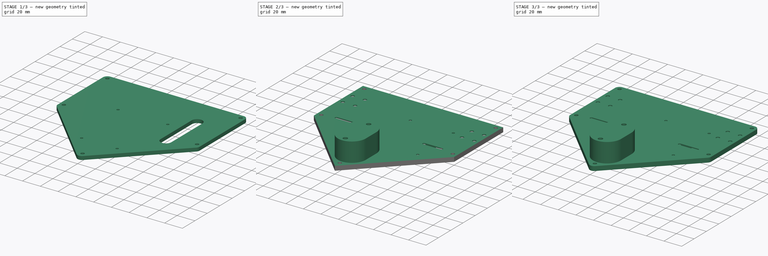
[diagram: build sequence overview — one tinted view per stage of 3, left to right]
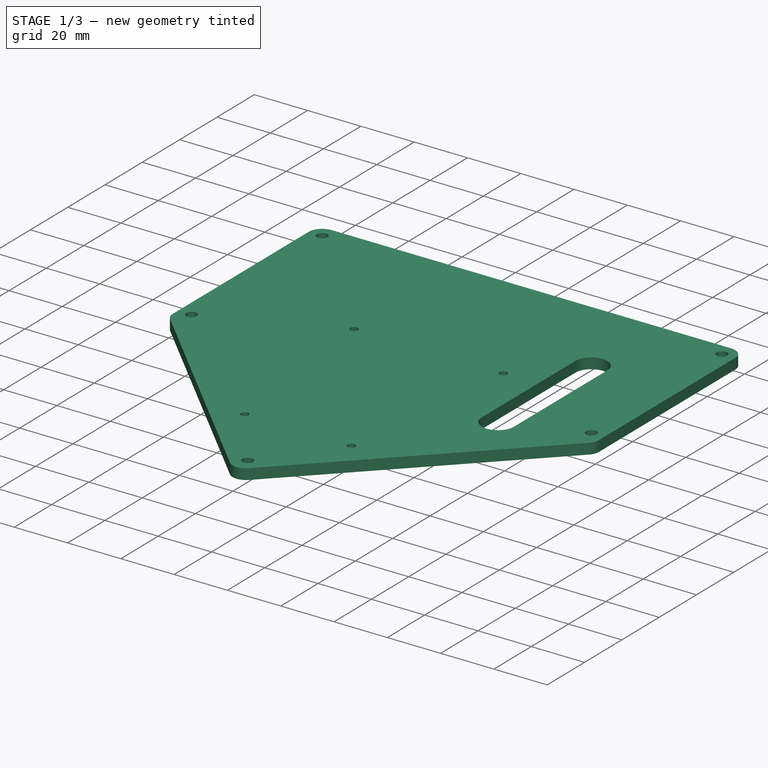
[diagram: stage 1 of 3 — iso view after this stage's code; geometry added in this stage tinted green]
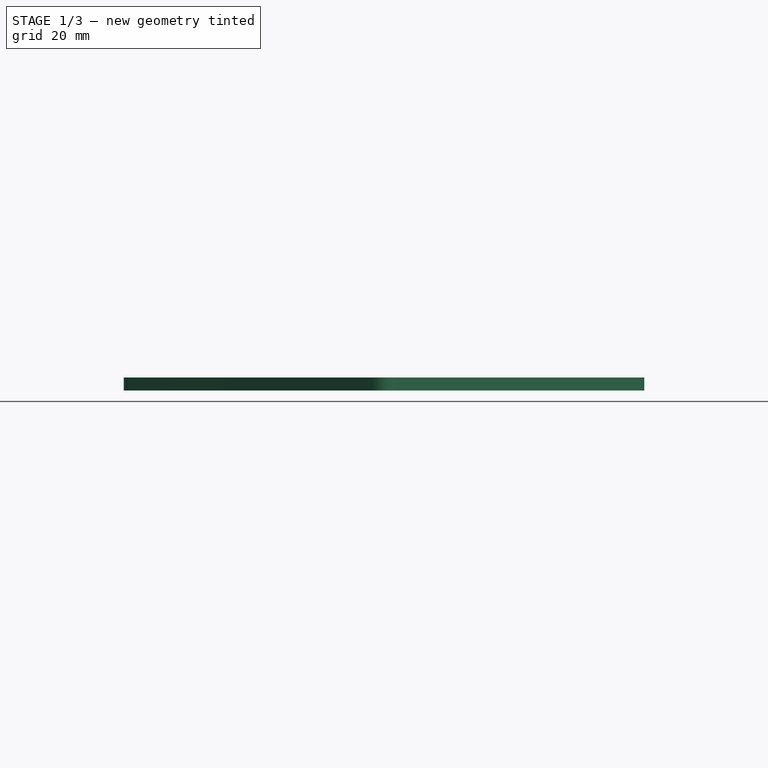
[diagram: stage 1 of 3 — front view after this stage's code; geometry added in this stage tinted green]
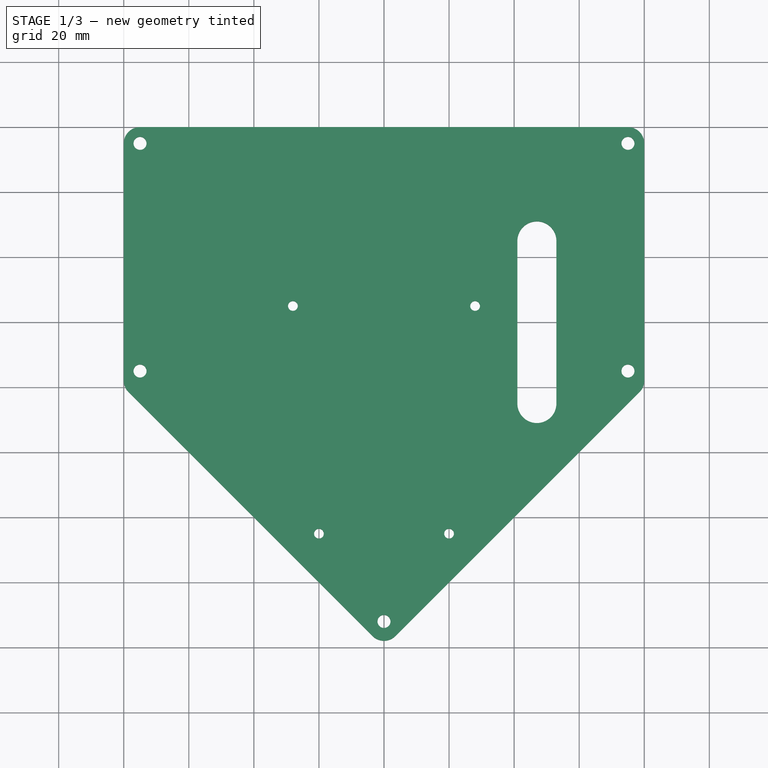
[diagram: stage 1 of 3 — top view after this stage's code; geometry added in this stage tinted green]
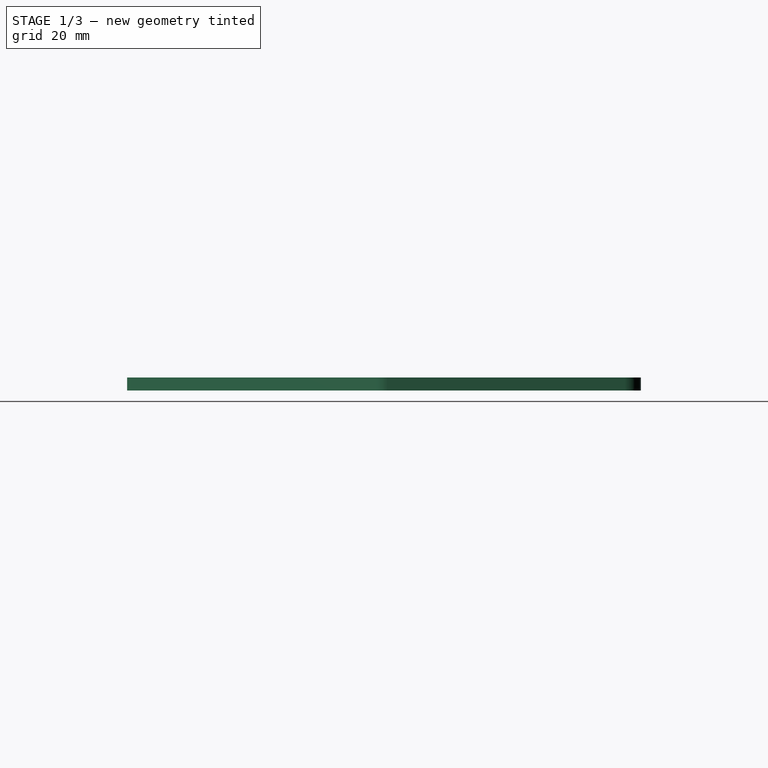
[diagram: stage 1 of 3 — right view after this stage's code; geometry added in this stage tinted green]
FCSTD DOCUMENT  (FreeCAD 0.20R29410 (Git))
Label: chassis_v4-2022
License: All rights reserved
LicenseURL: http://en.wikipedia.org/wiki/All_rights_reserved
objects: Sketcher::SketchObject×3, PartDesign::Pad×3, PartDesign::Fillet×3, PartDesign::Body×2
note: 17 computed .brp shape members not serialized (recipe doc carries the construction recipe); baked Part::Feature solids carry a one-line shape summary decoded from their .brp

FEATURE [PartDesign::Body] Body  label="base"
  Group = -> [Sketch,Sketch002,Pad,Pad001,Fillet,Fillet001]
  Origin = -> Origin
  Tip = -> Fillet001
FEATURE [Sketcher::SketchObject] Sketch003
  FullyConstrained = true
  MapMode = 5
  Support = -> [XY_Plane002]
  sketch-geometry (18):
    g0: LineSegment StartX=0 StartY=-80 StartZ=0 EndX=-80 EndY=0 EndZ=0
    g1: LineSegment StartX=-80 StartY=0 StartZ=0 EndX=-80 EndY=80 EndZ=0
    g2: LineSegment StartX=-80 StartY=80 StartZ=0 EndX=80 EndY=80 EndZ=0
    g3: LineSegment StartX=80 StartY=80 StartZ=0 EndX=80 EndY=0 EndZ=0
    g4: LineSegment StartX=80 StartY=0 StartZ=0 EndX=0 EndY=-80 EndZ=0
    g5: Circle CenterX=0 CenterY=-72 CenterZ=0 NormalX=0 NormalY=0 NormalZ=1 AngleXU=0 Radius=2
    g6: Circle CenterX=-75 CenterY=75 CenterZ=0 NormalX=0 NormalY=0 NormalZ=1 AngleXU=0 Radius=2
    g7: Circle CenterX=75 CenterY=75 CenterZ=0 NormalX=0 NormalY=0 NormalZ=1 AngleXU=0 Radius=2
    g8: Circle CenterX=-75 CenterY=5 CenterZ=0 NormalX=0 NormalY=0 NormalZ=1 AngleXU=0 Radius=2
    g9: Circle CenterX=75 CenterY=5 CenterZ=0 NormalX=0 NormalY=0 NormalZ=1 AngleXU=0 Radius=2
    g10: Circle CenterX=-28 CenterY=25 CenterZ=0 NormalX=0 NormalY=0 NormalZ=1 AngleXU=0 Radius=1.5
    g11: Circle CenterX=28 CenterY=25 CenterZ=0 NormalX=0 NormalY=0 NormalZ=1 AngleXU=0 Radius=1.5
    g12: Circle CenterX=-20 CenterY=-45 CenterZ=0 NormalX=0 NormalY=0 NormalZ=1 AngleXU=0 Radius=1.5
    g13: Circle CenterX=20 CenterY=-45 CenterZ=0 NormalX=0 NormalY=0 NormalZ=1 AngleXU=0 Radius=1.5
    g14: ArcOfCircle CenterX=47 CenterY=45 CenterZ=0 NormalX=0 NormalY=0 NormalZ=1 AngleXU=0 Radius=6 StartAngle=-4.388e-13 EndAngle=3.14159
    g15: ArcOfCircle CenterX=47 CenterY=-5 CenterZ=0 NormalX=0 NormalY=0 NormalZ=1 AngleXU=0 Radius=6 StartAngle=3.14159 EndAngle=6.28319
    g16: LineSegment StartX=41 StartY=45 StartZ=0 EndX=41 EndY=-5 EndZ=0
    g17: LineSegment StartX=53 StartY=-5 StartZ=0 EndX=53 EndY=45 EndZ=0
  constraints (48):
    c: PointOnObject(g0,g-2)
    c: PointOnObject(g0,g-1)
    c: Coincident(g0,g1)
    c: Vertical(g1)
    c: Coincident(g1,g2)
    c: Horizontal(g2)
    c: Coincident(g2,g3)
    c: PointOnObject(g3,g-1)
    c: Vertical(g3)
    c: Coincident(g3,g4)
    c: Coincident(g4,g0)
    c: Distance(g2) = 160
    c: Distance(g0,g2) = 160
    c: DistanceX(g-2,g3) = 80
    c: DistanceY(g-1,g0) = -80
    c: PointOnObject(g5,g-2)
    c: Diameter(g5) = 4
    c: DistanceY(g-1,g5) = -72
    c: Equal(g9,g7)
    c: Equal(g7,g6)
    c: Equal(g6,g8)
    c: Diameter(g6) = 4
    c: Distance(g6,g2) = 5
    c: Distance(g8,g6) = 70
    c: Symmetric(g7,g6,g-2)
    c: Symmetric(g9,g8,g-2)
    c: Distance(g6,g1) = 5
    c: Vertical(g8,g6)
    c: Equal(g10,g11)
    c: Equal(g11,g12)
    c: Equal(g12,g13)
    c: Diameter(g10) = 3
    c: Symmetric(g10,g11,g-2)
    c: Distance(g10,g11) = 56
    c: Symmetric(g12,g13,g-2)
    c: Distance(g12,g13) = 40
    c: DistanceY(g12,g10) = 70
    c: DistanceY(g-1,g10) = 25
    c: Tangent(g14,g16) = -1.5708
    c: Tangent(g16,g15) = -1.5708
    c: Tangent(g15,g17) = -1.5708
    c: Tangent(g17,g14) = -1.5708
    c: Equal(g14,g15)
    c: Vertical(g16)
    c: Radius(g14) = 6
    c: Distance(g15,g14) = 50
    c: DistanceY(g-1,g14) = 45
    c: DistanceX(g-2,g14) = 47
FEATURE [PartDesign::Pad] Pad002  label="sf_pad"
  Direction = (0,0,1)
  Length = 4
  Length2 = 10
  Profile = -> Sketch003
  ReferenceAxis = -> Sketch003 [N_Axis]
  Type = 0
FEATURE [PartDesign::Fillet] Fillet002
  Base = -> Pad002 [Edge1,Edge11,Edge2,Edge8,Edge5]
  BaseFeature = -> Pad002
  Radius = 5
  SupportTransform = false
  UseAllEdges = false
FEATURE [PartDesign::Body] Body001  label="second_floor"
  Group = -> [Sketch003,Pad002,Fillet002]
  Origin = -> Origin001
  Tip = -> Fillet002
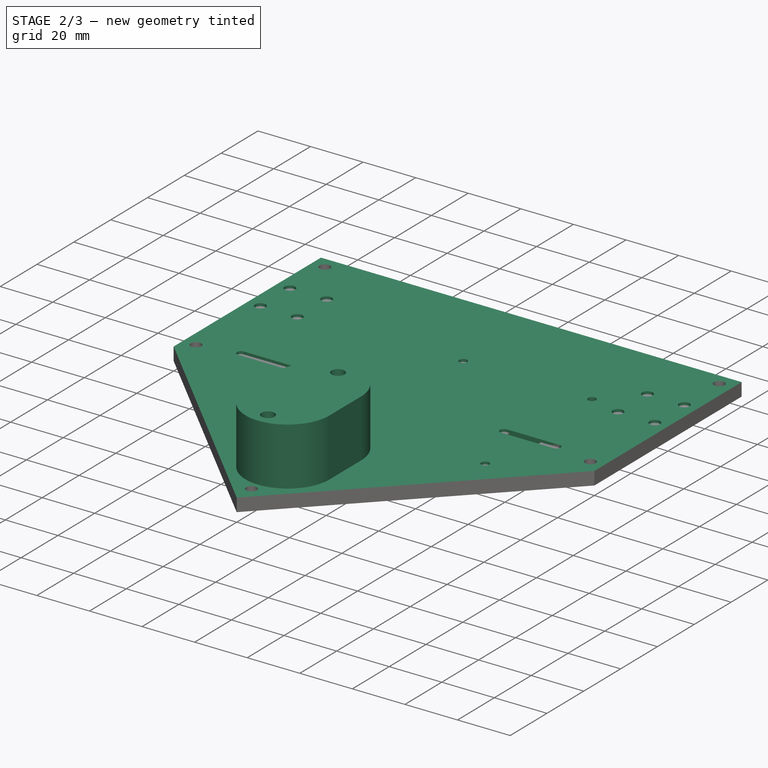
[diagram: stage 2 of 3 — iso view after this stage's code; geometry added in this stage tinted green]
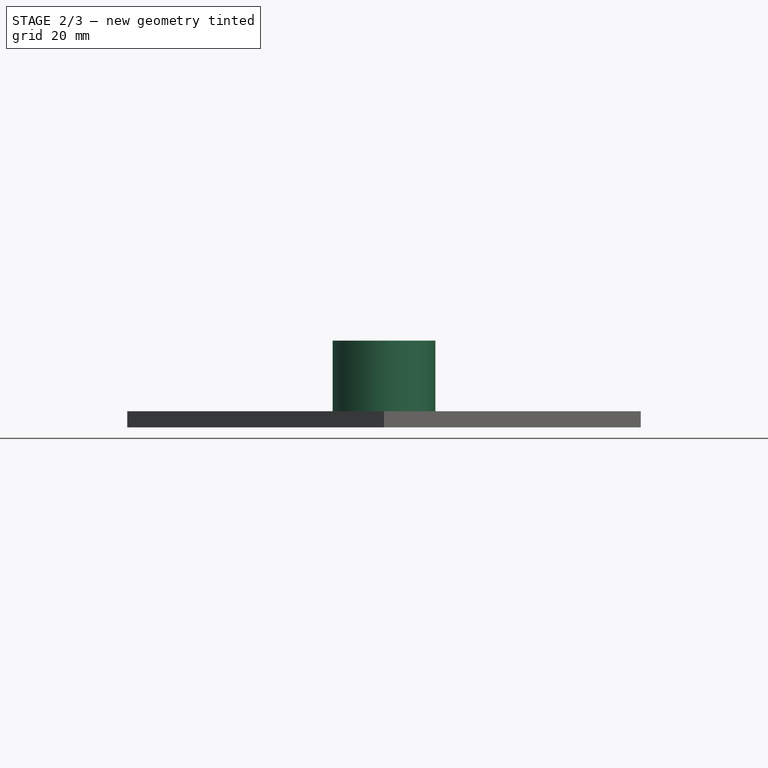
[diagram: stage 2 of 3 — front view after this stage's code; geometry added in this stage tinted green]
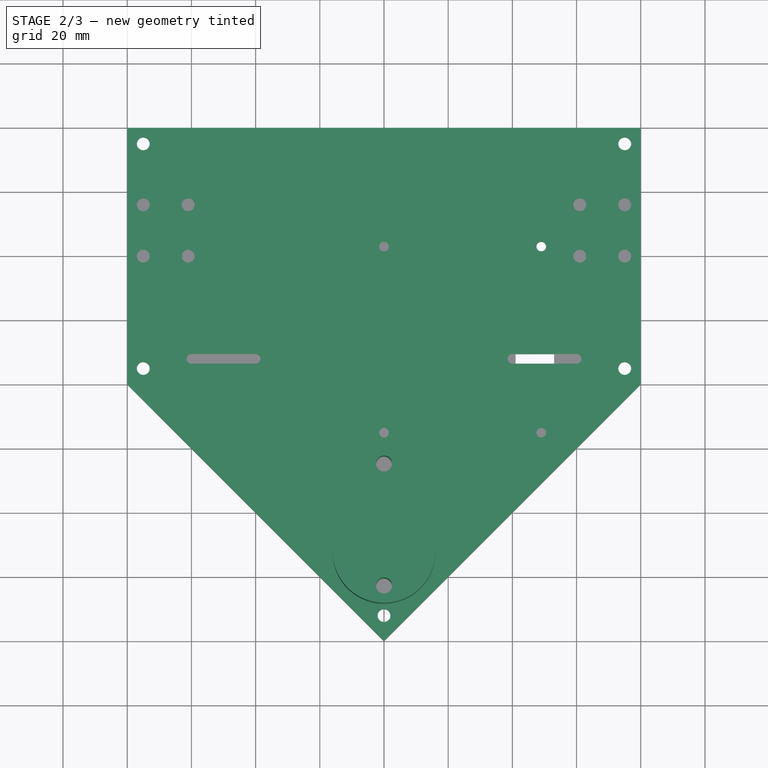
[diagram: stage 2 of 3 — top view after this stage's code; geometry added in this stage tinted green]
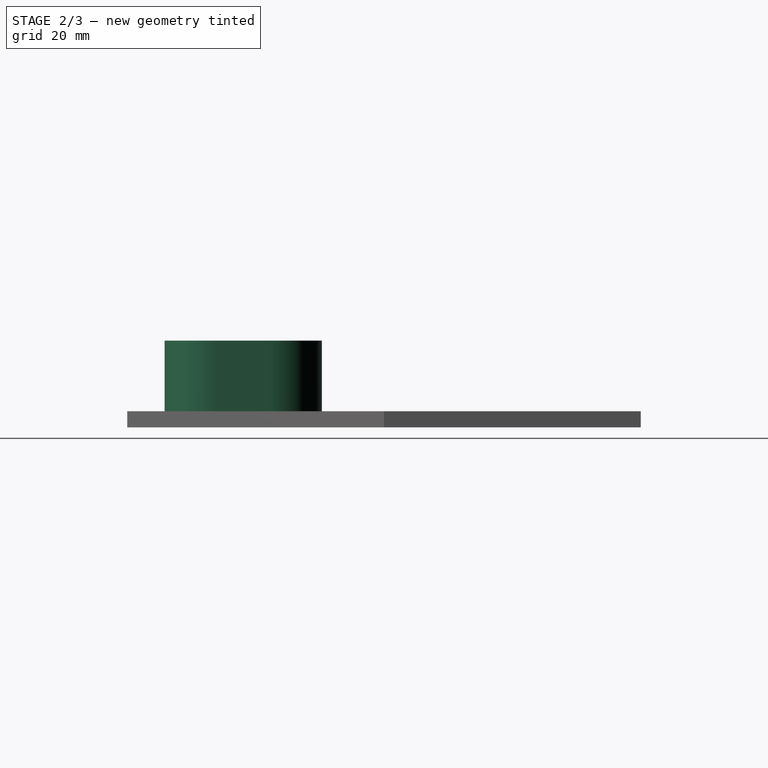
[diagram: stage 2 of 3 — right view after this stage's code; geometry added in this stage tinted green]
FEATURE [Sketcher::SketchObject] Sketch
  FullyConstrained = true
  MapMode = 5
  Support = -> [XY_Plane]
  sketch-geometry (32):
    g0: LineSegment StartX=0 StartY=-80 StartZ=0 EndX=-80 EndY=0 EndZ=0
    g1: LineSegment StartX=-80 StartY=0 StartZ=0 EndX=-80 EndY=80 EndZ=0
    g2: LineSegment StartX=-80 StartY=80 StartZ=0 EndX=80 EndY=80 EndZ=0
    g3: LineSegment StartX=80 StartY=80 StartZ=0 EndX=80 EndY=0 EndZ=0
    g4: LineSegment StartX=80 StartY=0 StartZ=0 EndX=0 EndY=-80 EndZ=0
    g5: Circle CenterX=-75 CenterY=56 CenterZ=0 NormalX=0 NormalY=0 NormalZ=1 AngleXU=0 Radius=2
    g6: Circle CenterX=-61 CenterY=56 CenterZ=0 NormalX=0 NormalY=0 NormalZ=1 AngleXU=0 Radius=2
    g7: Circle CenterX=-75 CenterY=40 CenterZ=0 NormalX=0 NormalY=0 NormalZ=1 AngleXU=0 Radius=2
    g8: Circle CenterX=-61 CenterY=40 CenterZ=0 NormalX=0 NormalY=0 NormalZ=1 AngleXU=0 Radius=2
    g9: Circle CenterX=61 CenterY=56 CenterZ=0 NormalX=0 NormalY=0 NormalZ=1 AngleXU=0 Radius=2
    g10: Circle CenterX=75 CenterY=56 CenterZ=0 NormalX=0 NormalY=0 NormalZ=1 AngleXU=0 Radius=2
    g11: Circle CenterX=61 CenterY=40 CenterZ=0 NormalX=0 NormalY=0 NormalZ=1 AngleXU=0 Radius=2
    g12: Circle CenterX=75 CenterY=40 CenterZ=0 NormalX=0 NormalY=0 NormalZ=1 AngleXU=0 Radius=2
    g13: Circle CenterX=0 CenterY=-63 CenterZ=0 NormalX=0 NormalY=0 NormalZ=1 AngleXU=0 Radius=2.5
    g14: Circle CenterX=0 CenterY=-25 CenterZ=0 NormalX=0 NormalY=0 NormalZ=1 AngleXU=0 Radius=2.5
    g15: Circle CenterX=-1.1e-15 CenterY=43 CenterZ=0 NormalX=0 NormalY=0 NormalZ=1 AngleXU=0 Radius=1.5
    g16: Circle CenterX=49 CenterY=43 CenterZ=0 NormalX=0 NormalY=0 NormalZ=1 AngleXU=0 Radius=1.5
    g17: Circle CenterX=49 CenterY=-15 CenterZ=0 NormalX=0 NormalY=0 NormalZ=1 AngleXU=0 Radius=1.5
    g18: Circle CenterX=-1.1e-15 CenterY=-15 CenterZ=0 NormalX=0 NormalY=0 NormalZ=1 AngleXU=0 Radius=1.5
    g19: ArcOfCircle CenterX=40 CenterY=8 CenterZ=0 NormalX=0 NormalY=0 NormalZ=1 AngleXU=0 Radius=1.5 StartAngle=1.5708 EndAngle=4.71239
    g20: ArcOfCircle CenterX=60 CenterY=8 CenterZ=0 NormalX=0 NormalY=0 NormalZ=1 AngleXU=0 Radius=1.5 StartAngle=4.71239 EndAngle=7.85398
    g21: LineSegment StartX=40 StartY=6.5 StartZ=0 EndX=60 EndY=6.5 EndZ=0
    g22: LineSegment StartX=60 StartY=9.5 StartZ=0 EndX=40 EndY=9.5 EndZ=0
    g23: ArcOfCircle CenterX=-60 CenterY=8 CenterZ=0 NormalX=0 NormalY=0 NormalZ=1 AngleXU=0 Radius=1.5 StartAngle=1.5708 EndAngle=4.71239
    g24: ArcOfCircle CenterX=-40 CenterY=8 CenterZ=0 NormalX=0 NormalY=0 NormalZ=1 AngleXU=0 Radius=1.5 StartAngle=4.71239 EndAngle=7.85398
    g25: LineSegment StartX=-60 StartY=6.5 StartZ=0 EndX=-40 EndY=6.5 EndZ=0
    g26: LineSegment StartX=-40 StartY=9.5 StartZ=0 EndX=-60 EndY=9.5 EndZ=0
    g27: Circle CenterX=0 CenterY=-72 CenterZ=0 NormalX=0 NormalY=0 NormalZ=1 AngleXU=0 Radius=2
    g28: Circle CenterX=-75 CenterY=75 CenterZ=0 NormalX=0 NormalY=0 NormalZ=1 AngleXU=0 Radius=2
    g29: Circle CenterX=75 CenterY=75 CenterZ=0 NormalX=0 NormalY=0 NormalZ=1 AngleXU=0 Radius=2
    g30: Circle CenterX=-75 CenterY=5 CenterZ=0 NormalX=0 NormalY=0 NormalZ=1 AngleXU=0 Radius=2
    g31: Circle CenterX=75 CenterY=5 CenterZ=0 NormalX=0 NormalY=0 NormalZ=1 AngleXU=0 Radius=2
  constraints (89):
    c: PointOnObject(g0,g-2)
    c: PointOnObject(g0,g-1)
    c: Coincident(g0,g1)
    c: Vertical(g1)
    c: Coincident(g1,g2)
    c: Horizontal(g2)
    c: Coincident(g2,g3)
    c: PointOnObject(g3,g-1)
    c: Vertical(g3)
    c: Coincident(g3,g4)
    c: Coincident(g4,g0)
    c: Distance(g2) = 160
    c: Distance(g0,g2) = 160
    c: DistanceX(g-2,g3) = 80
    c: DistanceY(g-1,g0) = -80
    c: Distance(g5,g1) = 5
    c: Equal(g5,g6)
    c: Equal(g6,g7)
    c: Equal(g7,g8)
    c: Equal(g8,g9)
    c: Equal(g9,g11)
    c: Equal(g11,g12)
    c: Equal(g12,g10)
    c: Diameter(g6) = 4
    c: Horizontal(g5,g6)
    c: Horizontal(g6,g9)
    c: Horizontal(g9,g10)
    c: Horizontal(g8,g7)
    c: Horizontal(g7,g12)
    c: Horizontal(g12,g11)
    c: Vertical(g5,g7)
    c: Vertical(g6,g8)
    c: Vertical(g9,g11)
    c: Vertical(g10,g12)
    c: Distance(g5,g6) = 14
    c: Distance(g6,g8) = 16
    c: DistanceY(g-1,g8) = 40
    c: Distance(g9,g10) = 14
    c: Distance(g10,g3) = 5
    c: PointOnObject(g14,g-2)
    c: Vertical(g13,g14)
    c: Distance(g14,g13) = 38
    c: DistanceY(g-1,g14) = -25
    c: Equal(g14,g13)
    c: Diameter(g14) = 5
    c: Equal(g15,g18)
    c: Equal(g18,g16)
    c: Equal(g16,g17)
    c: Diameter(g16) = 3
    c: Horizontal(g15,g16)
    c: Vertical(g18,g15)
    c: Vertical(g17,g16)
    c: Distance(g18,g17) = 49
    c: Distance(g18,g15) = 58
    c: DistanceY(g-1,g18) = -15
    c: Tangent(g19,g21) = -1.5708
    c: Tangent(g21,g20) = -1.5708
    c: Tangent(g20,g22) = -1.5708
    c: Tangent(g22,g19) = -1.5708
    c: Equal(g19,g20)
    c: Horizontal(g21)
    c: Radius(g19) = 1.5
    c: Distance(g19,g20) = 20
    c: Tangent(g23,g25) = -1.5708
    c: Tangent(g25,g24) = -1.5708
    c: Tangent(g24,g26) = -1.5708
    c: Tangent(g26,g23) = -1.5708
    c: Equal(g23,g24)
    c: Horizontal(g25)
    c: Equal(g23,g20)
    c: Distance(g23,g24) = 20
    c: Symmetric(g24,g19,g-2)
    c: DistanceY(g-1,g19) = 8
    c: Distance(g20,g3) = 20
    c: PointOnObject(g27,g-2)
    c: Diameter(g27) = 4
    c: DistanceY(g-1,g27) = -72
    c: Equal(g31,g29)
    c: Equal(g29,g28)
    c: Equal(g28,g30)
    c: Diameter(g28) = 4
    c: Vertical(g28,g5)
    c: Vertical(g5,g30)
    c: Distance(g28,g2) = 5
    c: Distance(g30,g28) = 70
    c: Symmetric(g29,g28,g-2)
    c: Symmetric(g31,g30,g-2)
    c: Horizontal(g17,g18)
    c: DistanceX(g-2,g16) = 49
FEATURE [Sketcher::SketchObject] Sketch002
  FullyConstrained = true
  MapMode = 5
  Placement = pos=(0,0,5) rot=(0,0,1;0rad)
  sketch-geometry (6):
    g0: ArcOfCircle CenterX=0 CenterY=-35.35 CenterZ=0 NormalX=0 NormalY=0 NormalZ=1 AngleXU=0 Radius=16 StartAngle=-3.775e-13 EndAngle=3.14159
    g1: ArcOfCircle CenterX=0 CenterY=-52.35 CenterZ=0 NormalX=0 NormalY=0 NormalZ=1 AngleXU=0 Radius=16 StartAngle=3.14159 EndAngle=6.28319
    g2: LineSegment StartX=-16 StartY=-35.35 StartZ=0 EndX=-16 EndY=-52.35 EndZ=0
    g3: LineSegment StartX=16 StartY=-52.35 StartZ=0 EndX=16 EndY=-35.35 EndZ=0
    g4: Circle CenterX=0 CenterY=-25 CenterZ=0 NormalX=0 NormalY=0 NormalZ=1 AngleXU=0 Radius=2.5
    g5: Circle CenterX=0 CenterY=-63 CenterZ=0 NormalX=0 NormalY=0 NormalZ=1 AngleXU=0 Radius=2.5
  constraints (16):
    c: Tangent(g0,g2) = -1.5708
    c: Tangent(g2,g1) = -1.5708
    c: Tangent(g1,g3) = -1.5708
    c: Tangent(g3,g0) = -1.5708
    c: Equal(g0,g1)
    c: PointOnObject(g1,g-2)
    c: Radius(g0) = 16
    c: Distance(g0,g1) = 17
    c: Vertical(g0,g1)
    c: DistanceY(g-1,g0) = -35.35
    c: PointOnObject(g4,g-2)
    c: PointOnObject(g5,g-2)
    c: Equal(g4,g5)
    c: Diameter(g4) = 5
    c: Distance(g4,g5) = 38
    c: DistanceY(g-1,g4) = -25
FEATURE [PartDesign::Pad] Pad  label="base_pad"
  Direction = (0,0,1)
  Length = 5
  Length2 = 10
  Profile = -> Sketch
  ReferenceAxis = -> Sketch [N_Axis]
  Type = 0
FEATURE [PartDesign::Pad] Pad001  label="caster_wheel_pad"
  BaseFeature = -> Pad
  Direction = (0,0,1)
  Length = 22
  Length2 = 10
  Profile = -> Sketch002
  ReferenceAxis = -> Sketch002 [N_Axis]
  Type = 0
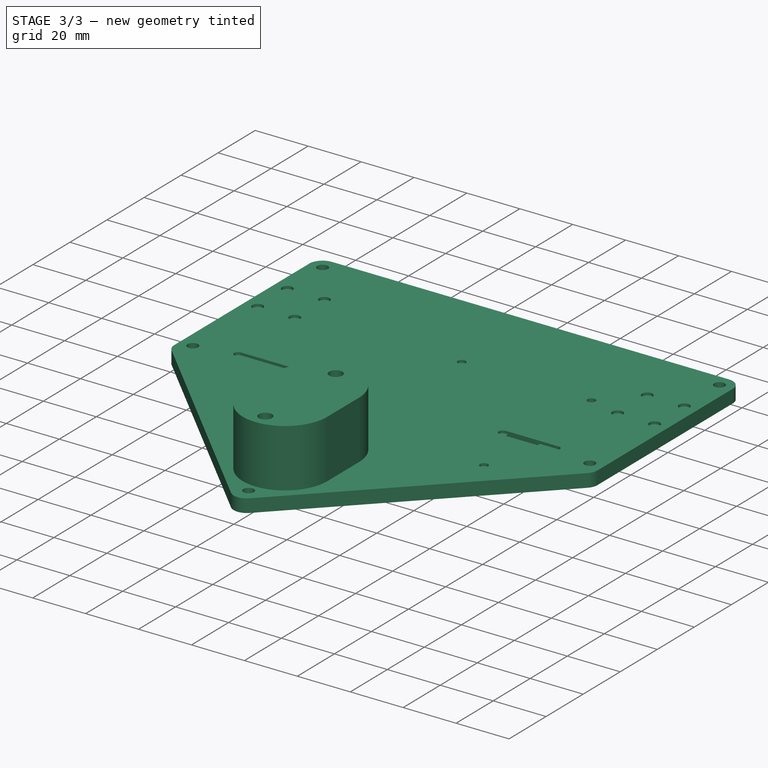
[diagram: stage 3 of 3 — iso view after this stage's code; geometry added in this stage tinted green]
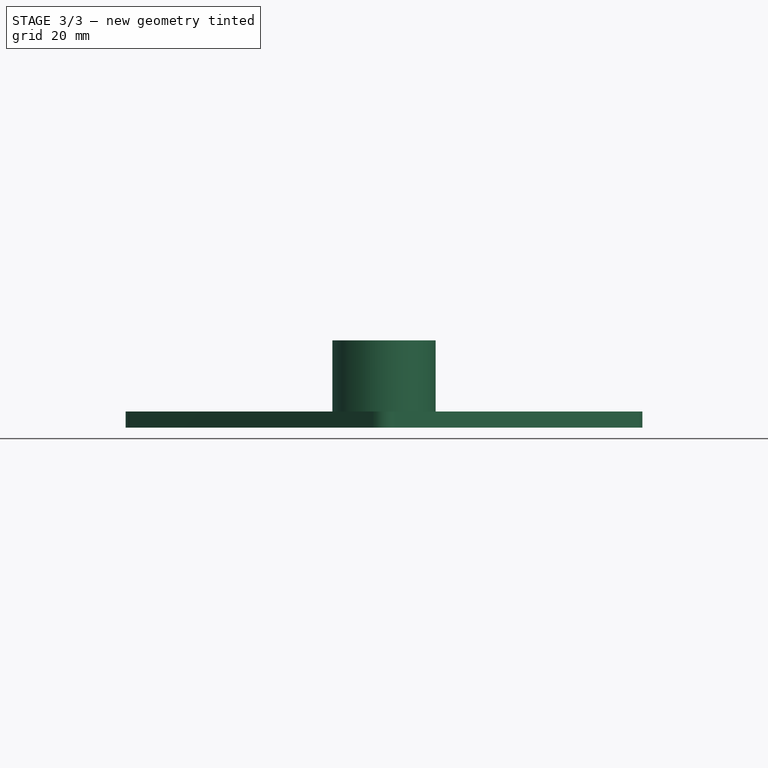
[diagram: stage 3 of 3 — front view after this stage's code; geometry added in this stage tinted green]
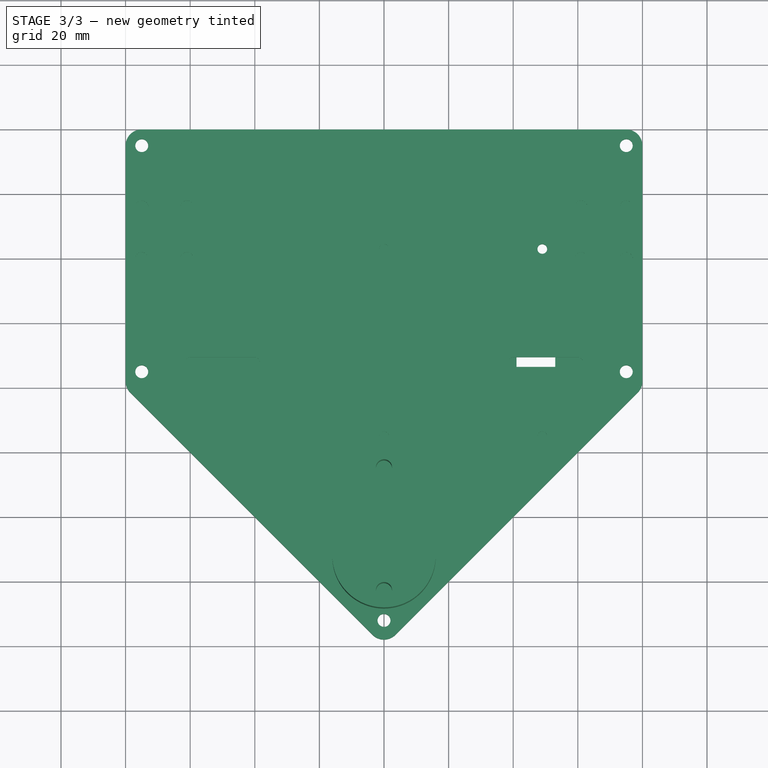
[diagram: stage 3 of 3 — top view after this stage's code; geometry added in this stage tinted green]
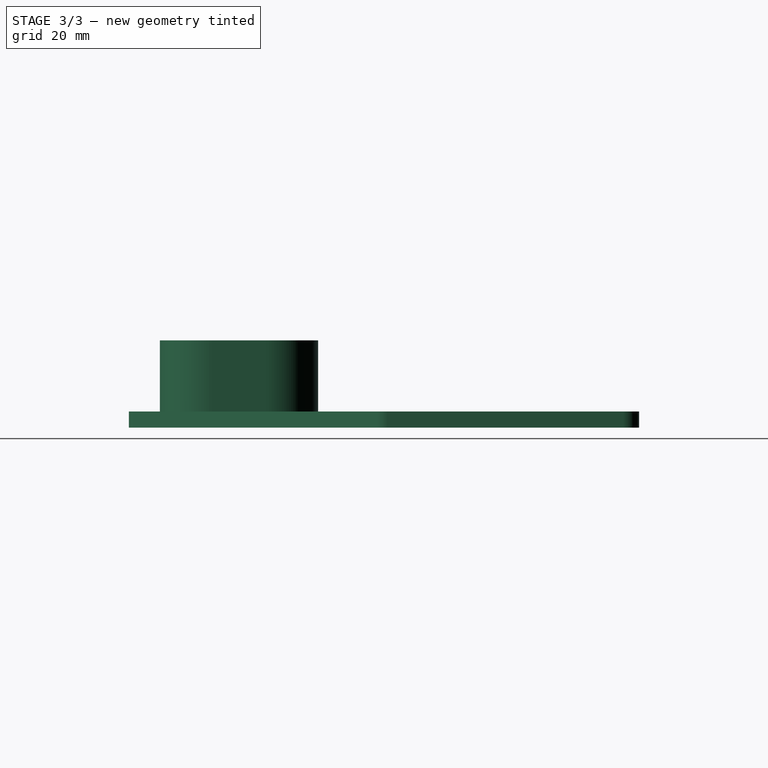
[diagram: stage 3 of 3 — right view after this stage's code; geometry added in this stage tinted green]
FEATURE [PartDesign::Fillet] Fillet
  Base = -> Pad001 [Edge8,Edge71,Edge5]
  BaseFeature = -> Pad001
  Radius = 5
  SupportTransform = false
  UseAllEdges = false
FEATURE [PartDesign::Fillet] Fillet001
  Base = -> Fillet [Edge41,Edge3]
  BaseFeature = -> Fillet
  Radius = 5
  SupportTransform = false
  UseAllEdges = false
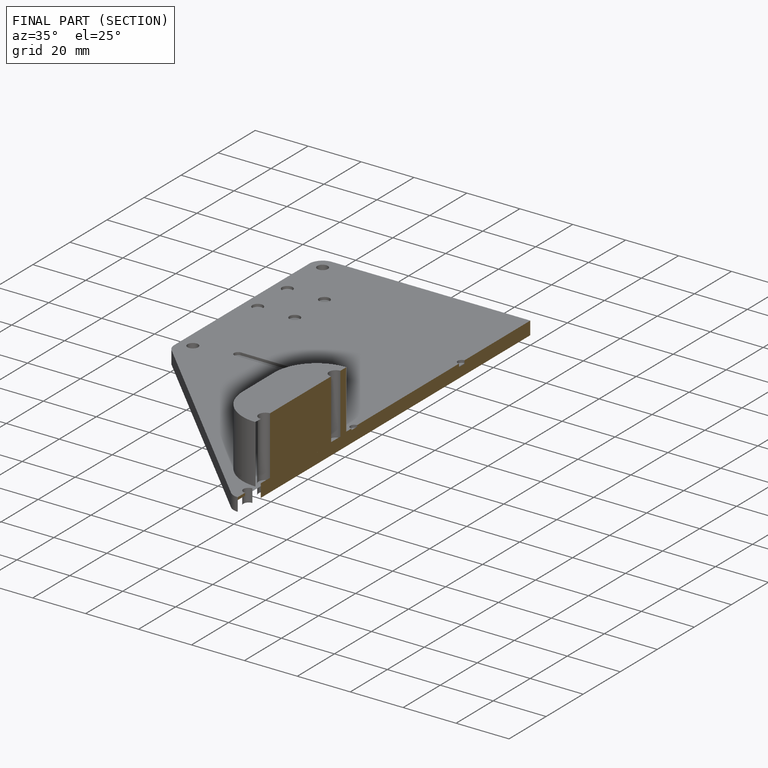
[diagram: finished part — half-section view (interior)]
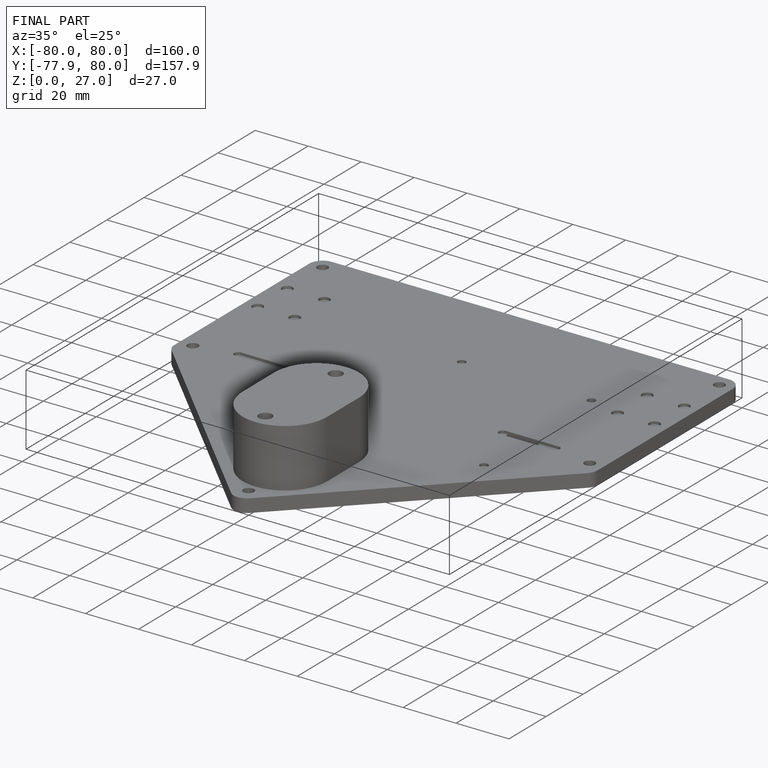
[diagram: finished part — iso view with bounding-box wireframe]
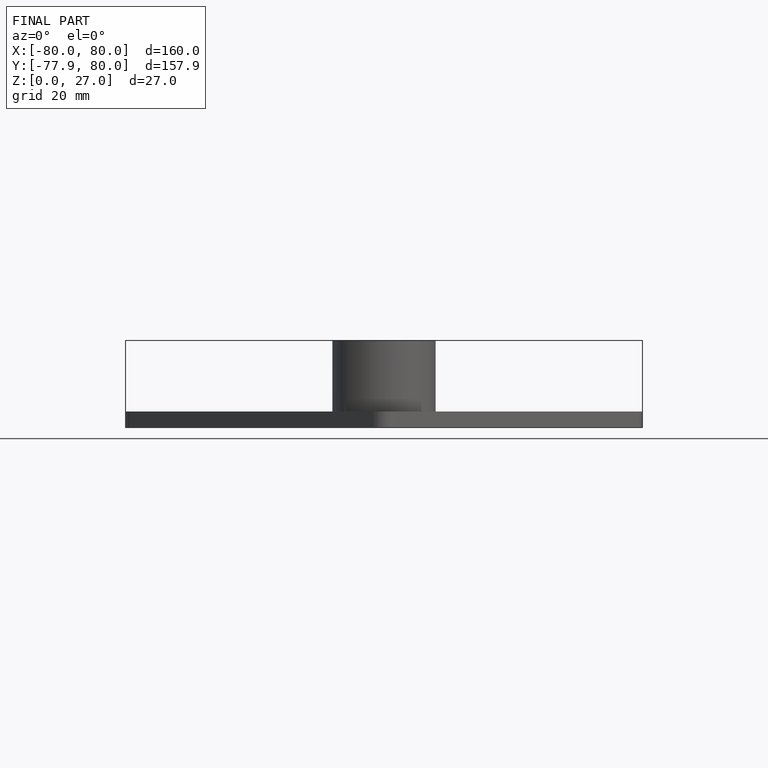
[diagram: finished part — front view with bounding-box wireframe]
